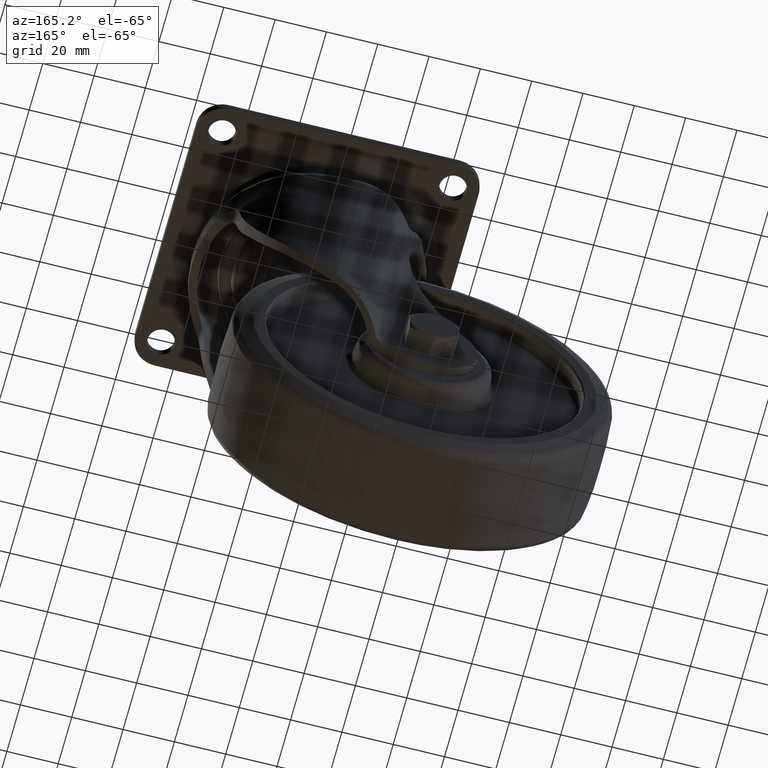
[diagram: clean part render]
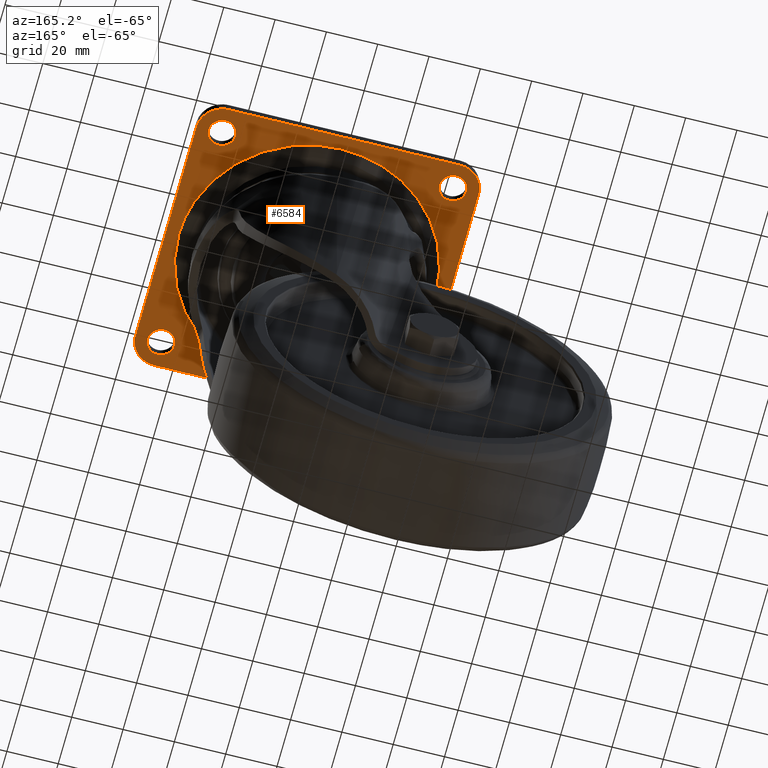
[diagram: same view with one face highlighted and labeled with its STEP entity id]
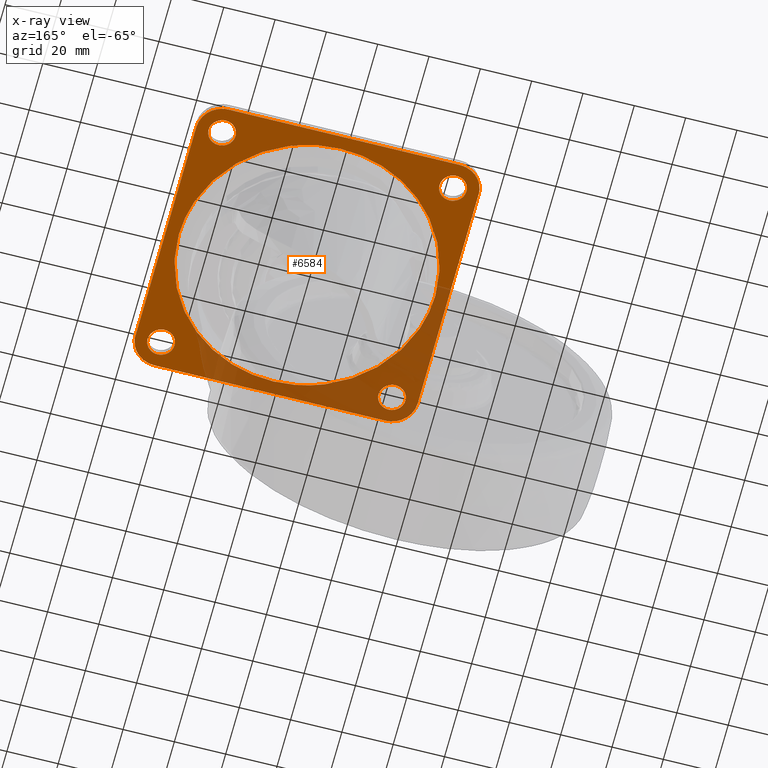
[diagram: x-ray of the same camera — body ghosted, the highlighted face saturated]
A machine part, auxiliary view. The second image highlights one B-rep face of the part: STEP entity #6584.
The next image is the same camera in x-ray: the body ghosted, the highlighted face saturated — about 32% of this face is hidden behind the body in this view.
In plain terms, the highlighted face is a freeform B-spline surface patch.
Its self-contained STEP definition (entity closure, byte-faithful):
#5466=CARTESIAN_POINT('',(19.134171618288772,46.193976625553717,-3.999999999997671));
#5467=VERTEX_POINT('',#5466);
#5473=CARTESIAN_POINT('',(50.0,1.421085E-014,-4.0));
#5474=VERTEX_POINT('',#5473);
#5475=CARTESIAN_POINT('',(19.134171618288764,46.193976625553731,-3.999999999997671));
#5476=CARTESIAN_POINT('',(50.000000000000618,33.408931895940633,-3.999999999998836));
#5477=CARTESIAN_POINT('',(50.0,1.421085E-014,-4.0));
#5485=(BOUNDED_CURVE()B_SPLINE_CURVE(2,(#5475,#5476,#5477),.UNSPECIFIED.,.F.,.U.)B_SPLINE_CURVE_WITH_KNOTS((3,3),(0.314972883118648,0.500000000000000),.UNSPECIFIED.)CURVE()GEOMETRIC_REPRESENTATION_ITEM()RATIONAL_B_SPLINE_CURVE((0.887325194919027,0.783227248675392,1.0))REPRESENTATION_ITEM(''));
#5486=EDGE_CURVE('',#5467,#5474,#5485,.T.);
#5488=CARTESIAN_POINT('',(-19.134171618288750,-46.193976625553702,-3.999999999997669));
#5489=VERTEX_POINT('',#5488);
#5490=CARTESIAN_POINT('',(50.0,1.421085E-014,-4.0));
#5491=CARTESIAN_POINT('',(49.999999999999581,-50.000000000000981,-3.999999999999221));
#5492=CARTESIAN_POINT('',(-1.040111E-012,-50.000000000002530,-3.999999999998056));
#5493=CARTESIAN_POINT('',(-9.945618369002634,-50.000000000002835,-3.999999999997825));
#5494=CARTESIAN_POINT('',(-19.134171618288747,-46.193976625553702,-3.999999999997669));
#5502=(BOUNDED_CURVE()B_SPLINE_CURVE(2,(#5490,#5491,#5492,#5493,#5494),.UNSPECIFIED.,.F.,.U.)B_SPLINE_CURVE_WITH_KNOTS((3,2,3),(0.500000000000000,0.750000000000000,0.814972883118648),.UNSPECIFIED.)CURVE()GEOMETRIC_REPRESENTATION_ITEM()RATIONAL_B_SPLINE_CURVE((1.0,0.707106781186547,1.0,0.923879532511155,0.887325194919027))REPRESENTATION_ITEM(''));
#5503=EDGE_CURVE('',#5474,#5489,#5502,.T.);
#5533=CARTESIAN_POINT('',(-50.0,1.421085E-014,-4.0));
#5534=VERTEX_POINT('',#5533);
#5535=CARTESIAN_POINT('',(-19.134171618288747,-46.193976625553702,-3.999999999997669));
#5536=CARTESIAN_POINT('',(-50.000000000000618,-33.408931895940604,-3.999999999998836));
#5537=CARTESIAN_POINT('',(-50.0,1.421085E-014,-4.0));
#5545=(BOUNDED_CURVE()B_SPLINE_CURVE(2,(#5535,#5536,#5537),.UNSPECIFIED.,.F.,.U.)B_SPLINE_CURVE_WITH_KNOTS((3,3),(0.814972883118648,1.0),.UNSPECIFIED.)CURVE()GEOMETRIC_REPRESENTATION_ITEM()RATIONAL_B_SPLINE_CURVE((0.887325194919027,0.783227248675392,1.0))REPRESENTATION_ITEM(''));
#5546=EDGE_CURVE('',#5489,#5534,#5545,.T.);
#5548=CARTESIAN_POINT('',(-50.0,1.421085E-014,-4.0));
#5549=CARTESIAN_POINT('',(-49.999999999999574,50.000000000001030,-3.999999999999222));
#5550=CARTESIAN_POINT('',(1.046038E-012,50.000000000002551,-3.999999999998058));
#5551=CARTESIAN_POINT('',(9.945618369002654,50.000000000002856,-3.999999999997826));
#5552=CARTESIAN_POINT('',(19.134171618288764,46.193976625553731,-3.999999999997671));
#5560=(BOUNDED_CURVE()B_SPLINE_CURVE(2,(#5548,#5549,#5550,#5551,#5552),.UNSPECIFIED.,.F.,.U.)B_SPLINE_CURVE_WITH_KNOTS((3,2,3),(0.0,0.250000000000000,0.314972883118648),.UNSPECIFIED.)CURVE()GEOMETRIC_REPRESENTATION_ITEM()RATIONAL_B_SPLINE_CURVE((1.0,0.707106781186547,1.0,0.923879532511155,0.887325194919027))REPRESENTATION_ITEM(''));
#5561=EDGE_CURVE('',#5534,#5467,#5560,.T.);
#5587=CARTESIAN_POINT('',(-45.320504833015107,39.759792308313159,-4.0));
#5588=VERTEX_POINT('',#5587);
#5589=CARTESIAN_POINT('',(-39.750000000000000,45.0,-4.0));
#5590=VERTEX_POINT('',#5589);
#5591=CARTESIAN_POINT('',(-45.320504833015121,39.759792308313159,-4.0));
#5592=CARTESIAN_POINT('',(-45.160402007546793,39.750000000000000,-4.000000000000001));
#5593=CARTESIAN_POINT('',(-45.0,39.750000000000000,-4.0));
#5594=CARTESIAN_POINT('',(-39.750000000000000,39.750000000000000,-4.0));
#5595=CARTESIAN_POINT('',(-39.750000000000000,45.0,-4.0));
#5603=(BOUNDED_CURVE()B_SPLINE_CURVE(2,(#5591,#5592,#5593,#5594,#5595),.UNSPECIFIED.,.F.,.U.)B_SPLINE_CURVE_WITH_KNOTS((3,2,3),(0.239332962226917,0.250000000000000,0.500000000000000),.UNSPECIFIED.)CURVE()GEOMETRIC_REPRESENTATION_ITEM()RATIONAL_B_SPLINE_CURVE((0.976072041640943,0.987502787885748,1.0,0.707106781186547,1.0))REPRESENTATION_ITEM(''));
#5604=EDGE_CURVE('',#5588,#5590,#5603,.T.);
#5645=CARTESIAN_POINT('',(-44.679495166984893,50.240207691686841,-4.0));
#5646=VERTEX_POINT('',#5645);
#5652=CARTESIAN_POINT('',(-39.750000000000000,45.0,-4.0));
#5653=CARTESIAN_POINT('',(-39.749999999999993,49.938706850823266,-4.000000000000000));
#5654=CARTESIAN_POINT('',(-44.679495166984886,50.240207691686841,-4.0));
#5662=(BOUNDED_CURVE()B_SPLINE_CURVE(2,(#5652,#5653,#5654),.UNSPECIFIED.,.F.,.U.)B_SPLINE_CURVE_WITH_KNOTS((3,3),(0.500000000000000,0.739332962226917),.UNSPECIFIED.)CURVE()GEOMETRIC_REPRESENTATION_ITEM()RATIONAL_B_SPLINE_CURVE((1.0,0.719603993300800,0.976072041640943))REPRESENTATION_ITEM(''));
#5663=EDGE_CURVE('',#5590,#5646,#5662,.T.);
#5686=CARTESIAN_POINT('',(-50.249999999999993,45.0,-4.0));
#5687=VERTEX_POINT('',#5686);
#5688=CARTESIAN_POINT('',(-50.249999999999993,45.0,-4.0));
#5689=CARTESIAN_POINT('',(-50.249999999999986,40.061293149176713,-4.000000000000001));
#5690=CARTESIAN_POINT('',(-45.320504833015100,39.759792308313159,-4.000000000000000));
#5698=(BOUNDED_CURVE()B_SPLINE_CURVE(2,(#5688,#5689,#5690),.UNSPECIFIED.,.F.,.U.)B_SPLINE_CURVE_WITH_KNOTS((3,3),(0.0,0.239332962226917),.UNSPECIFIED.)CURVE()GEOMETRIC_REPRESENTATION_ITEM()RATIONAL_B_SPLINE_CURVE((1.0,0.719603993300799,0.976072041640944))REPRESENTATION_ITEM(''));
#5699=EDGE_CURVE('',#5687,#5588,#5698,.T.);
#5701=CARTESIAN_POINT('',(-44.679495166984907,50.240207691686834,-4.0));
#5702=CARTESIAN_POINT('',(-44.839597992453214,50.249999999999979,-4.0));
#5703=CARTESIAN_POINT('',(-45.0,50.249999999999993,-4.0));
#5704=CARTESIAN_POINT('',(-50.249999999999986,50.249999999999986,-4.0));
#5705=CARTESIAN_POINT('',(-50.249999999999993,45.0,-4.0));
#5713=(BOUNDED_CURVE()B_SPLINE_CURVE(2,(#5701,#5702,#5703,#5704,#5705),.UNSPECIFIED.,.F.,.U.)B_SPLINE_CURVE_WITH_KNOTS((3,2,3),(0.739332962226917,0.750000000000000,1.0),.UNSPECIFIED.)CURVE()GEOMETRIC_REPRESENTATION_ITEM()RATIONAL_B_SPLINE_CURVE((0.976072041640944,0.987502787885748,1.0,0.707106781186547,1.0))REPRESENTATION_ITEM(''));
#5714=EDGE_CURVE('',#5646,#5687,#5713,.T.);
#5769=CARTESIAN_POINT('',(44.679495166984893,39.759792308313159,-4.0));
#5770=VERTEX_POINT('',#5769);
#5771=CARTESIAN_POINT('',(50.249999999999993,45.0,-4.0));
#5772=VERTEX_POINT('',#5771);
#5773=CARTESIAN_POINT('',(44.679495166984886,39.759792308313166,-4.0));
#5774=CARTESIAN_POINT('',(44.839597992453214,39.750000000000000,-4.000000000000001));
#5775=CARTESIAN_POINT('',(45.0,39.750000000000000,-4.0));
#5776=CARTESIAN_POINT('',(50.249999999999986,39.750000000000000,-4.0));
#5777=CARTESIAN_POINT('',(50.249999999999993,45.0,-4.0));
#5785=(BOUNDED_CURVE()B_SPLINE_CURVE(2,(#5773,#5774,#5775,#5776,#5777),.UNSPECIFIED.,.F.,.U.)B_SPLINE_CURVE_WITH_KNOTS((3,2,3),(0.239332962226917,0.250000000000000,0.500000000000000),.UNSPECIFIED.)CURVE()GEOMETRIC_REPRESENTATION_ITEM()RATIONAL_B_SPLINE_CURVE((0.976072041640943,0.987502787885748,1.0,0.707106781186547,1.0))REPRESENTATION_ITEM(''));
#5786=EDGE_CURVE('',#5770,#5772,#5785,.T.);
#5827=CARTESIAN_POINT('',(45.320504833015107,50.240207691686841,-4.0));
#5828=VERTEX_POINT('',#5827);
#5834=CARTESIAN_POINT('',(50.249999999999993,45.0,-4.0));
#5835=CARTESIAN_POINT('',(50.249999999999993,49.938706850823294,-4.0));
#5836=CARTESIAN_POINT('',(45.320504833015100,50.240207691686834,-4.000000000000000));
#5844=(BOUNDED_CURVE()B_SPLINE_CURVE(2,(#5834,#5835,#5836),.UNSPECIFIED.,.F.,.U.)B_SPLINE_CURVE_WITH_KNOTS((3,3),(0.500000000000000,0.739332962226917),.UNSPECIFIED.)CURVE()GEOMETRIC_REPRESENTATION_ITEM()RATIONAL_B_SPLINE_CURVE((1.0,0.719603993300799,0.976072041640944))REPRESENTATION_ITEM(''));
#5845=EDGE_CURVE('',#5772,#5828,#5844,.T.);
#5868=CARTESIAN_POINT('',(39.750000000000000,45.0,-4.0));
#5869=VERTEX_POINT('',#5868);
#5870=CARTESIAN_POINT('',(39.750000000000000,45.0,-4.0));
#5871=CARTESIAN_POINT('',(39.750000000000000,40.061293149176734,-4.0));
#5872=CARTESIAN_POINT('',(44.679495166984886,39.759792308313173,-4.000000000000001));
#5880=(BOUNDED_CURVE()B_SPLINE_CURVE(2,(#5870,#5871,#5872),.UNSPECIFIED.,.F.,.U.)B_SPLINE_CURVE_WITH_KNOTS((3,3),(0.0,0.239332962226916),.UNSPECIFIED.)CURVE()GEOMETRIC_REPRESENTATION_ITEM()RATIONAL_B_SPLINE_CURVE((1.0,0.719603993300800,0.976072041640943))REPRESENTATION_ITEM(''));
#5881=EDGE_CURVE('',#5869,#5770,#5880,.T.);
#5883=CARTESIAN_POINT('',(45.320504833015100,50.240207691686834,-4.000000000000000));
#5884=CARTESIAN_POINT('',(45.160402007546793,50.249999999999993,-4.000000000000000));
#5885=CARTESIAN_POINT('',(45.0,50.249999999999993,-4.0));
#5886=CARTESIAN_POINT('',(39.750000000000000,50.249999999999986,-4.0));
#5887=CARTESIAN_POINT('',(39.750000000000000,45.0,-4.0));
#5895=(BOUNDED_CURVE()B_SPLINE_CURVE(2,(#5883,#5884,#5885,#5886,#5887),.UNSPECIFIED.,.F.,.U.)B_SPLINE_CURVE_WITH_KNOTS((3,2,3),(0.739332962226917,0.750000000000000,1.0),.UNSPECIFIED.)CURVE()GEOMETRIC_REPRESENTATION_ITEM()RATIONAL_B_SPLINE_CURVE((0.976072041640944,0.987502787885748,1.0,0.707106781186547,1.0))REPRESENTATION_ITEM(''));
#5896=EDGE_CURVE('',#5828,#5869,#5895,.T.);
#5951=CARTESIAN_POINT('',(44.679495166984893,-50.240207691686827,-4.0));
#5952=VERTEX_POINT('',#5951);
#5953=CARTESIAN_POINT('',(50.249999999999993,-45.0,-4.0));
#5954=VERTEX_POINT('',#5953);
#5955=CARTESIAN_POINT('',(44.679495166984886,-50.240207691686834,-4.000000000000001));
#5956=CARTESIAN_POINT('',(44.839597992453214,-50.249999999999993,-4.0));
#5957=CARTESIAN_POINT('',(45.0,-50.249999999999993,-4.0));
#5958=CARTESIAN_POINT('',(50.249999999999986,-50.249999999999986,-4.0));
#5959=CARTESIAN_POINT('',(50.249999999999993,-45.0,-4.0));
#5967=(BOUNDED_CURVE()B_SPLINE_CURVE(2,(#5955,#5956,#5957,#5958,#5959),.UNSPECIFIED.,.F.,.U.)B_SPLINE_CURVE_WITH_KNOTS((3,2,3),(0.239332962226917,0.250000000000000,0.500000000000000),.UNSPECIFIED.)CURVE()GEOMETRIC_REPRESENTATION_ITEM()RATIONAL_B_SPLINE_CURVE((0.976072041640943,0.987502787885748,1.0,0.707106781186547,1.0))REPRESENTATION_ITEM(''));
#5968=EDGE_CURVE('',#5952,#5954,#5967,.T.);
#6009=CARTESIAN_POINT('',(45.320504833015107,-39.759792308313152,-4.0));
#6010=VERTEX_POINT('',#6009);
#6016=CARTESIAN_POINT('',(50.249999999999993,-45.0,-4.0));
#6017=CARTESIAN_POINT('',(50.249999999999993,-40.061293149176706,-4.0));
#6018=CARTESIAN_POINT('',(45.320504833015100,-39.759792308313159,-4.000000000000000));
#6026=(BOUNDED_CURVE()B_SPLINE_CURVE(2,(#6016,#6017,#6018),.UNSPECIFIED.,.F.,.U.)B_SPLINE_CURVE_WITH_KNOTS((3,3),(0.500000000000000,0.739332962226917),.UNSPECIFIED.)CURVE()GEOMETRIC_REPRESENTATION_ITEM()RATIONAL_B_SPLINE_CURVE((1.0,0.719603993300799,0.976072041640944))REPRESENTATION_ITEM(''));
#6027=EDGE_CURVE('',#5954,#6010,#6026,.T.);
#6050=CARTESIAN_POINT('',(39.750000000000000,-45.0,-4.0));
#6051=VERTEX_POINT('',#6050);
#6052=CARTESIAN_POINT('',(39.750000000000000,-45.0,-4.0));
#6053=CARTESIAN_POINT('',(39.750000000000000,-49.938706850823273,-4.0));
#6054=CARTESIAN_POINT('',(44.679495166984886,-50.240207691686834,-4.000000000000001));
#6062=(BOUNDED_CURVE()B_SPLINE_CURVE(2,(#6052,#6053,#6054),.UNSPECIFIED.,.F.,.U.)B_SPLINE_CURVE_WITH_KNOTS((3,3),(0.0,0.239332962226917),.UNSPECIFIED.)CURVE()GEOMETRIC_REPRESENTATION_ITEM()RATIONAL_B_SPLINE_CURVE((1.0,0.719603993300800,0.976072041640943))REPRESENTATION_ITEM(''));
#6063=EDGE_CURVE('',#6051,#5952,#6062,.T.);
#6065=CARTESIAN_POINT('',(45.320504833015100,-39.759792308313159,-4.000000000000000));
#6066=CARTESIAN_POINT('',(45.160402007546793,-39.750000000000007,-4.000000000000000));
#6067=CARTESIAN_POINT('',(45.0,-39.750000000000000,-4.0));
#6068=CARTESIAN_POINT('',(39.750000000000000,-39.750000000000000,-4.0));
#6069=CARTESIAN_POINT('',(39.750000000000000,-45.0,-4.0));
#6077=(BOUNDED_CURVE()B_SPLINE_CURVE(2,(#6065,#6066,#6067,#6068,#6069),.UNSPECIFIED.,.F.,.U.)B_SPLINE_CURVE_WITH_KNOTS((3,2,3),(0.739332962226917,0.750000000000000,1.0),.UNSPECIFIED.)CURVE()GEOMETRIC_REPRESENTATION_ITEM()RATIONAL_B_SPLINE_CURVE((0.976072041640944,0.987502787885748,1.0,0.707106781186547,1.0))REPRESENTATION_ITEM(''));
#6078=EDGE_CURVE('',#6010,#6051,#6077,.T.);
#6133=CARTESIAN_POINT('',(-45.320504833015107,-50.240207691686841,-4.0));
#6134=VERTEX_POINT('',#6133);
#6135=CARTESIAN_POINT('',(-39.750000000000000,-45.0,-4.0));
#6136=VERTEX_POINT('',#6135);
#6137=CARTESIAN_POINT('',(-45.320504833015121,-50.240207691686820,-4.000000000000000));
#6138=CARTESIAN_POINT('',(-45.160402007546793,-50.249999999999993,-4.000000000000001));
#6139=CARTESIAN_POINT('',(-45.0,-50.249999999999993,-4.0));
#6140=CARTESIAN_POINT('',(-39.750000000000000,-50.249999999999986,-4.0));
#6141=CARTESIAN_POINT('',(-39.750000000000000,-45.0,-4.0));
#6149=(BOUNDED_CURVE()B_SPLINE_CURVE(2,(#6137,#6138,#6139,#6140,#6141),.UNSPECIFIED.,.F.,.U.)B_SPLINE_CURVE_WITH_KNOTS((3,2,3),(0.239332962226917,0.250000000000000,0.500000000000000),.UNSPECIFIED.)CURVE()GEOMETRIC_REPRESENTATION_ITEM()RATIONAL_B_SPLINE_CURVE((0.976072041640943,0.987502787885748,1.0,0.707106781186547,1.0))REPRESENTATION_ITEM(''));
#6150=EDGE_CURVE('',#6134,#6136,#6149,.T.);
#6191=CARTESIAN_POINT('',(-44.679495166984893,-39.759792308313159,-4.0));
#6192=VERTEX_POINT('',#6191);
#6198=CARTESIAN_POINT('',(-39.750000000000000,-45.0,-4.0));
#6199=CARTESIAN_POINT('',(-39.749999999999993,-40.061293149176720,-4.000000000000000));
#6200=CARTESIAN_POINT('',(-44.679495166984886,-39.759792308313159,-4.0));
#6208=(BOUNDED_CURVE()B_SPLINE_CURVE(2,(#6198,#6199,#6200),.UNSPECIFIED.,.F.,.U.)B_SPLINE_CURVE_WITH_KNOTS((3,3),(0.500000000000000,0.739332962226917),.UNSPECIFIED.)CURVE()GEOMETRIC_REPRESENTATION_ITEM()RATIONAL_B_SPLINE_CURVE((1.0,0.719603993300800,0.976072041640943))REPRESENTATION_ITEM(''));
#6209=EDGE_CURVE('',#6136,#6192,#6208,.T.);
#6232=CARTESIAN_POINT('',(-50.249999999999993,-45.0,-4.0));
#6233=VERTEX_POINT('',#6232);
#6234=CARTESIAN_POINT('',(-50.249999999999993,-45.0,-4.0));
#6235=CARTESIAN_POINT('',(-50.249999999999986,-49.938706850823287,-4.000000000000001));
#6236=CARTESIAN_POINT('',(-45.320504833015100,-50.240207691686834,-4.000000000000000));
#6244=(BOUNDED_CURVE()B_SPLINE_CURVE(2,(#6234,#6235,#6236),.UNSPECIFIED.,.F.,.U.)B_SPLINE_CURVE_WITH_KNOTS((3,3),(0.0,0.239332962226917),.UNSPECIFIED.)CURVE()GEOMETRIC_REPRESENTATION_ITEM()RATIONAL_B_SPLINE_CURVE((1.0,0.719603993300799,0.976072041640944))REPRESENTATION_ITEM(''));
#6245=EDGE_CURVE('',#6233,#6134,#6244,.T.);
#6247=CARTESIAN_POINT('',(-44.679495166984907,-39.759792308313166,-4.0));
#6248=CARTESIAN_POINT('',(-44.839597992453214,-39.750000000000007,-4.0));
#6249=CARTESIAN_POINT('',(-45.0,-39.750000000000000,-4.0));
#6250=CARTESIAN_POINT('',(-50.249999999999986,-39.750000000000000,-4.0));
#6251=CARTESIAN_POINT('',(-50.249999999999993,-45.0,-4.0));
#6259=(BOUNDED_CURVE()B_SPLINE_CURVE(2,(#6247,#6248,#6249,#6250,#6251),.UNSPECIFIED.,.F.,.U.)B_SPLINE_CURVE_WITH_KNOTS((3,2,3),(0.739332962226917,0.750000000000000,1.0),.UNSPECIFIED.)CURVE()GEOMETRIC_REPRESENTATION_ITEM()RATIONAL_B_SPLINE_CURVE((0.976072041640944,0.987502787885748,1.0,0.707106781186547,1.0))REPRESENTATION_ITEM(''));
#6260=EDGE_CURVE('',#6192,#6233,#6259,.T.);
#6459=CARTESIAN_POINT('',(-60.494499786798663,60.494499786798663,-4.0));
#6460=CARTESIAN_POINT('',(60.494502737228572,60.494499786798663,-4.0));
#6461=CARTESIAN_POINT('',(-60.494499786798663,-60.494502737228572,-4.0));
#6462=CARTESIAN_POINT('',(60.494502737228572,-60.494502737228572,-4.0));
#6463=B_SPLINE_SURFACE_WITH_KNOTS('',1,1,((#6459,#6461),(#6460,#6462)),.UNSPECIFIED.,.F.,.F.,.U.,(2,2),(2,2),(0.0,120.989002524027200),(0.0,120.989002524027200),.UNSPECIFIED.);
#6464=CARTESIAN_POINT('',(55.0,45.0,-4.0));
#6465=VERTEX_POINT('',#6464);
#6466=CARTESIAN_POINT('',(45.0,55.0,-4.0));
#6467=VERTEX_POINT('',#6466);
#6468=CARTESIAN_POINT('',(55.0,45.0,-4.0));
#6469=CARTESIAN_POINT('',(55.000000000000007,55.000000000000007,-4.000000000000000));
#6470=CARTESIAN_POINT('',(45.0,55.0,-4.0));
#6478=(BOUNDED_CURVE()B_SPLINE_CURVE(2,(#6468,#6469,#6470),.UNSPECIFIED.,.F.,.U.)CURVE()GEOMETRIC_REPRESENTATION_ITEM()QUASI_UNIFORM_CURVE()RATIONAL_B_SPLINE_CURVE((1.0,0.707106781186548,1.0))REPRESENTATION_ITEM(''));
#6479=EDGE_CURVE('',#6465,#6467,#6478,.T.);
#6480=ORIENTED_EDGE('',*,*,#6479,.F.);
#6481=CARTESIAN_POINT('',(55.0,-45.0,-4.0));
#6482=VERTEX_POINT('',#6481);
#6483=CARTESIAN_POINT('',(55.0,-45.0,-4.0));
#6484=CARTESIAN_POINT('',(55.0,45.0,-4.0));
#6485=QUASI_UNIFORM_CURVE('',1,(#6483,#6484),.UNSPECIFIED.,.F.,.U.);
#6486=EDGE_CURVE('',#6482,#6465,#6485,.T.);
#6487=ORIENTED_EDGE('',*,*,#6486,.F.);
#6488=CARTESIAN_POINT('',(45.0,-55.0,-4.0));
#6489=VERTEX_POINT('',#6488);
#6490=CARTESIAN_POINT('',(45.0,-55.0,-4.0));
#6491=CARTESIAN_POINT('',(55.000000000000007,-55.000000000000007,-4.000000000000000));
#6492=CARTESIAN_POINT('',(55.0,-45.0,-4.0));
#6500=(BOUNDED_CURVE()B_SPLINE_CURVE(2,(#6490,#6491,#6492),.UNSPECIFIED.,.F.,.U.)CURVE()GEOMETRIC_REPRESENTATION_ITEM()QUASI_UNIFORM_CURVE()RATIONAL_B_SPLINE_CURVE((1.0,0.707106781186548,1.0))REPRESENTATION_ITEM(''));
#6501=EDGE_CURVE('',#6489,#6482,#6500,.T.);
#6502=ORIENTED_EDGE('',*,*,#6501,.F.);
#6503=CARTESIAN_POINT('',(-45.0,-55.0,-4.0));
#6504=VERTEX_POINT('',#6503);
#6505=CARTESIAN_POINT('',(-45.0,-55.0,-4.0));
#6506=CARTESIAN_POINT('',(45.0,-55.0,-4.0));
#6507=QUASI_UNIFORM_CURVE('',1,(#6505,#6506),.UNSPECIFIED.,.F.,.U.);
#6508=EDGE_CURVE('',#6504,#6489,#6507,.T.);
#6509=ORIENTED_EDGE('',*,*,#6508,.F.);
#6510=CARTESIAN_POINT('',(-55.0,-45.0,-4.0));
#6511=VERTEX_POINT('',#6510);
#6512=CARTESIAN_POINT('',(-55.0,-45.0,-4.0));
#6513=CARTESIAN_POINT('',(-55.000000000000007,-55.000000000000007,-4.000000000000000));
#6514=CARTESIAN_POINT('',(-45.0,-55.0,-4.0));
#6522=(BOUNDED_CURVE()B_SPLINE_CURVE(2,(#6512,#6513,#6514),.UNSPECIFIED.,.F.,.U.)CURVE()GEOMETRIC_REPRESENTATION_ITEM()QUASI_UNIFORM_CURVE()RATIONAL_B_SPLINE_CURVE((1.0,0.707106781186548,1.0))REPRESENTATION_ITEM(''));
#6523=EDGE_CURVE('',#6511,#6504,#6522,.T.);
#6524=ORIENTED_EDGE('',*,*,#6523,.F.);
#6525=CARTESIAN_POINT('',(-55.0,45.0,-4.0));
#6526=VERTEX_POINT('',#6525);
#6527=CARTESIAN_POINT('',(-55.0,45.0,-4.0));
#6528=CARTESIAN_POINT('',(-55.0,-45.0,-4.0));
#6529=QUASI_UNIFORM_CURVE('',1,(#6527,#6528),.UNSPECIFIED.,.F.,.U.);
#6530=EDGE_CURVE('',#6526,#6511,#6529,.T.);
#6531=ORIENTED_EDGE('',*,*,#6530,.F.);
#6532=CARTESIAN_POINT('',(-45.0,55.0,-4.0));
#6533=VERTEX_POINT('',#6532);
#6534=CARTESIAN_POINT('',(-45.0,55.0,-4.0));
#6535=CARTESIAN_POINT('',(-55.000000000000007,55.000000000000007,-4.000000000000000));
#6536=CARTESIAN_POINT('',(-55.0,45.0,-4.0));
#6544=(BOUNDED_CURVE()B_SPLINE_CURVE(2,(#6534,#6535,#6536),.UNSPECIFIED.,.F.,.U.)CURVE()GEOMETRIC_REPRESENTATION_ITEM()QUASI_UNIFORM_CURVE()RATIONAL_B_SPLINE_CURVE((1.0,0.707106781186548,1.0))REPRESENTATION_ITEM(''));
#6545=EDGE_CURVE('',#6533,#6526,#6544,.T.);
#6546=ORIENTED_EDGE('',*,*,#6545,.F.);
#6547=CARTESIAN_POINT('',(45.0,55.0,-4.0));
#6548=CARTESIAN_POINT('',(-45.0,55.0,-4.0));
#6549=QUASI_UNIFORM_CURVE('',1,(#6547,#6548),.UNSPECIFIED.,.F.,.U.);
#6550=EDGE_CURVE('',#6467,#6533,#6549,.T.);
#6551=ORIENTED_EDGE('',*,*,#6550,.F.);
#6552=EDGE_LOOP('',(#6480,#6487,#6502,#6509,#6524,#6531,#6546,#6551));
#6553=FACE_OUTER_BOUND('',#6552,.T.);
#6554=ORIENTED_EDGE('',*,*,#6209,.T.);
#6555=ORIENTED_EDGE('',*,*,#6260,.T.);
#6556=ORIENTED_EDGE('',*,*,#6245,.T.);
#6557=ORIENTED_EDGE('',*,*,#6150,.T.);
#6558=EDGE_LOOP('',(#6554,#6555,#6556,#6557));
#6559=FACE_BOUND('',#6558,.T.);
#6560=ORIENTED_EDGE('',*,*,#6027,.T.);
#6561=ORIENTED_EDGE('',*,*,#6078,.T.);
#6562=ORIENTED_EDGE('',*,*,#6063,.T.);
#6563=ORIENTED_EDGE('',*,*,#5968,.T.);
#6564=EDGE_LOOP('',(#6560,#6561,#6562,#6563));
#6565=FACE_BOUND('',#6564,.T.);
#6566=ORIENTED_EDGE('',*,*,#5845,.T.);
#6567=ORIENTED_EDGE('',*,*,#5896,.T.);
#6568=ORIENTED_EDGE('',*,*,#5881,.T.);
#6569=ORIENTED_EDGE('',*,*,#5786,.T.);
#6570=EDGE_LOOP('',(#6566,#6567,#6568,#6569));
#6571=FACE_BOUND('',#6570,.T.);
#6572=ORIENTED_EDGE('',*,*,#5663,.T.);
#6573=ORIENTED_EDGE('',*,*,#5714,.T.);
#6574=ORIENTED_EDGE('',*,*,#5699,.T.);
#6575=ORIENTED_EDGE('',*,*,#5604,.T.);
#6576=EDGE_LOOP('',(#6572,#6573,#6574,#6575));
#6577=FACE_BOUND('',#6576,.T.);
#6578=ORIENTED_EDGE('',*,*,#5561,.F.);
#6579=ORIENTED_EDGE('',*,*,#5546,.F.);
#6580=ORIENTED_EDGE('',*,*,#5503,.F.);
#6581=ORIENTED_EDGE('',*,*,#5486,.F.);
#6582=EDGE_LOOP('',(#6578,#6579,#6580,#6581));
#6583=FACE_BOUND('',#6582,.T.);
#6584=ADVANCED_FACE('',(#6553,#6559,#6565,#6571,#6577,#6583),#6463,.T.);